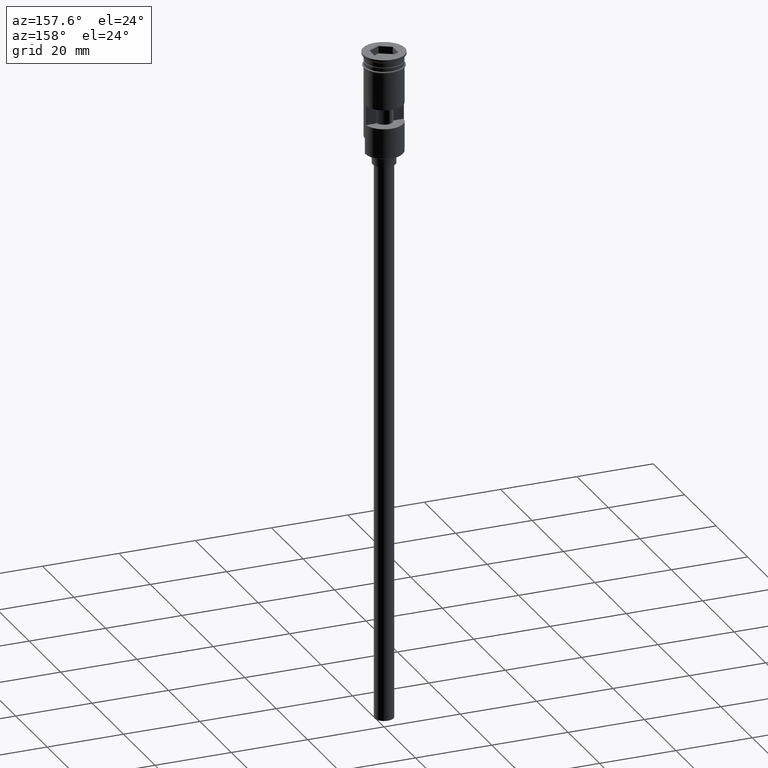
[diagram: clean part render]
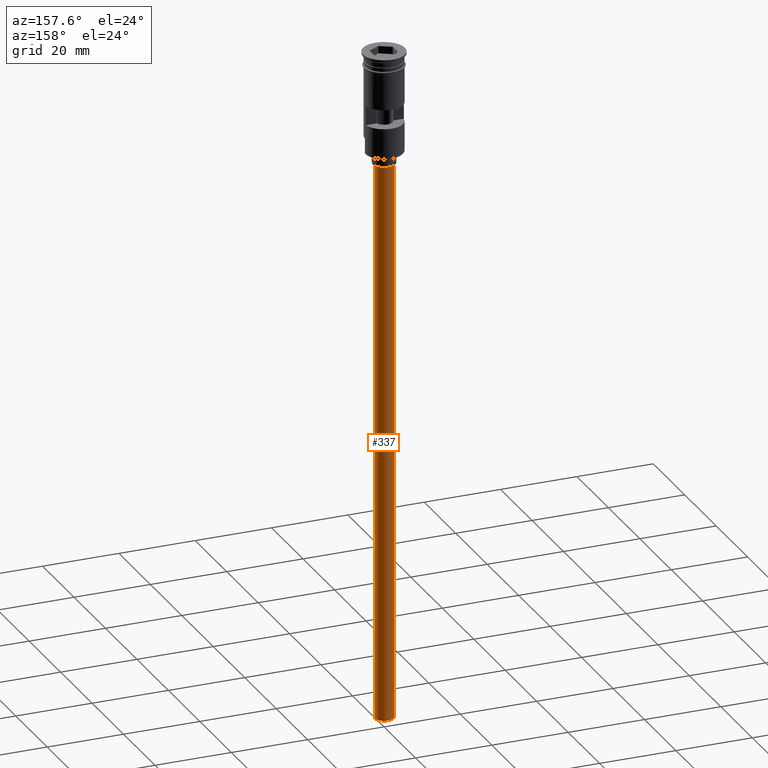
[diagram: same view with one face highlighted and labeled with its STEP entity id]
A machine part, auxiliary view. The second image highlights one B-rep face of the part: STEP entity #337.
In plain terms, the highlighted cylindrical surface (edge-blend (fillet) strip) has radius 2.5 mm, axis along (-0, -0, 1).
Its self-contained STEP definition (entity closure, byte-faithful):
#35 = VERTEX_POINT ( 'NONE', #1394 ) ;
#43 = CIRCLE ( 'NONE', #873, 2.500000000000000000 ) ;
#61 = DIRECTION ( 'NONE',  ( 0.000000000000000000, 0.000000000000000000, -1.000000000000000000 ) ) ;
#102 = VECTOR ( 'NONE', #282, 1000.000000000000000 ) ;
#155 = ORIENTED_EDGE ( 'NONE', *, *, #184, .F. ) ;
#157 = CARTESIAN_POINT ( 'NONE',  ( -2.500000000000000000, 3.061616997868383141E-16, -176.5000000000000000 ) ) ;
#184 = EDGE_CURVE ( 'NONE', #1576, #564, #43, .T. ) ;
#193 = ORIENTED_EDGE ( 'NONE', *, *, #1436, .F. ) ;
#232 = CARTESIAN_POINT ( 'NONE',  ( 2.500000000000000000, 0.000000000000000000, -176.5000000000000000 ) ) ;
#254 = CARTESIAN_POINT ( 'NONE',  ( -2.500000000000000000, 3.061616997868383141E-16, -29.50000000000000000 ) ) ;
#282 = DIRECTION ( 'NONE',  ( -0.000000000000000000, -0.000000000000000000, 1.000000000000000000 ) ) ;
#300 = VECTOR ( 'NONE', #747, 1000.000000000000000 ) ;
#305 = FACE_OUTER_BOUND ( 'NONE', #664, .T. ) ;
#315 = CARTESIAN_POINT ( 'NONE',  ( 0.000000000000000000, 0.000000000000000000, -176.5000000000000000 ) ) ;
#337 = ADVANCED_FACE ( 'NONE', ( #305 ), #1307, .T. ) ;
#427 = LINE ( 'NONE', #1521, #102 ) ;
#539 = DIRECTION ( 'NONE',  ( -1.000000000000000000, 0.000000000000000000, 0.000000000000000000 ) ) ;
#564 = VERTEX_POINT ( 'NONE', #232 ) ;
#568 = VERTEX_POINT ( 'NONE', #254 ) ;
#571 = DIRECTION ( 'NONE',  ( 0.000000000000000000, 0.000000000000000000, -1.000000000000000000 ) ) ;
#664 = EDGE_LOOP ( 'NONE', ( #155, #690, #989, #193 ) ) ;
#690 = ORIENTED_EDGE ( 'NONE', *, *, #1541, .T. ) ;
#747 = DIRECTION ( 'NONE',  ( -0.000000000000000000, -0.000000000000000000, 1.000000000000000000 ) ) ;
#857 = LINE ( 'NONE', #1343, #300 ) ;
#873 = AXIS2_PLACEMENT_3D ( 'NONE', #1427, #571, #1066 ) ;
#907 = AXIS2_PLACEMENT_3D ( 'NONE', #315, #1065, #1180 ) ;
#989 = ORIENTED_EDGE ( 'NONE', *, *, #1373, .T. ) ;
#1042 = AXIS2_PLACEMENT_3D ( 'NONE', #1164, #61, #539 ) ;
#1065 = DIRECTION ( 'NONE',  ( -0.000000000000000000, -0.000000000000000000, 1.000000000000000000 ) ) ;
#1066 = DIRECTION ( 'NONE',  ( -1.000000000000000000, 0.000000000000000000, 0.000000000000000000 ) ) ;
#1164 = CARTESIAN_POINT ( 'NONE',  ( 0.000000000000000000, 0.000000000000000000, -29.50000000000000000 ) ) ;
#1180 = DIRECTION ( 'NONE',  ( 1.000000000000000000, 0.000000000000000000, 0.000000000000000000 ) ) ;
#1307 = CYLINDRICAL_SURFACE ( 'NONE', #907, 2.500000000000000000 ) ;
#1343 = CARTESIAN_POINT ( 'NONE',  ( 2.500000000000000000, 0.000000000000000000, -176.5000000000000000 ) ) ;
#1373 = EDGE_CURVE ( 'NONE', #568, #35, #1595, .T. ) ;
#1394 = CARTESIAN_POINT ( 'NONE',  ( 2.500000000000000000, 0.000000000000000000, -29.50000000000000000 ) ) ;
#1427 = CARTESIAN_POINT ( 'NONE',  ( 0.000000000000000000, 0.000000000000000000, -176.5000000000000000 ) ) ;
#1436 = EDGE_CURVE ( 'NONE', #564, #35, #857, .T. ) ;
#1521 = CARTESIAN_POINT ( 'NONE',  ( -2.500000000000000000, 3.061616997868383141E-16, -176.5000000000000000 ) ) ;
#1541 = EDGE_CURVE ( 'NONE', #1576, #568, #427, .T. ) ;
#1576 = VERTEX_POINT ( 'NONE', #157 ) ;
#1595 = CIRCLE ( 'NONE', #1042, 2.500000000000000000 ) ;